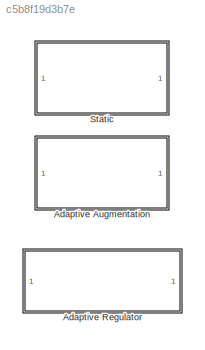
MODEL slx_c5b8f19d3b7e
KIND model
CONFIG AbsTol = auto
CONFIG EnableMultiTasking = off
CONFIG FixedStep = auto
CONFIG MaxStep = auto
CONFIG MinStep = auto
CONFIG RelTol = 1e-3
CONFIG SampleTimeConstraint = Unconstrained
CONFIG SolverName = VariableStepAuto
CONFIG StartTime = 0.0
CONFIG StopTime = 10.0
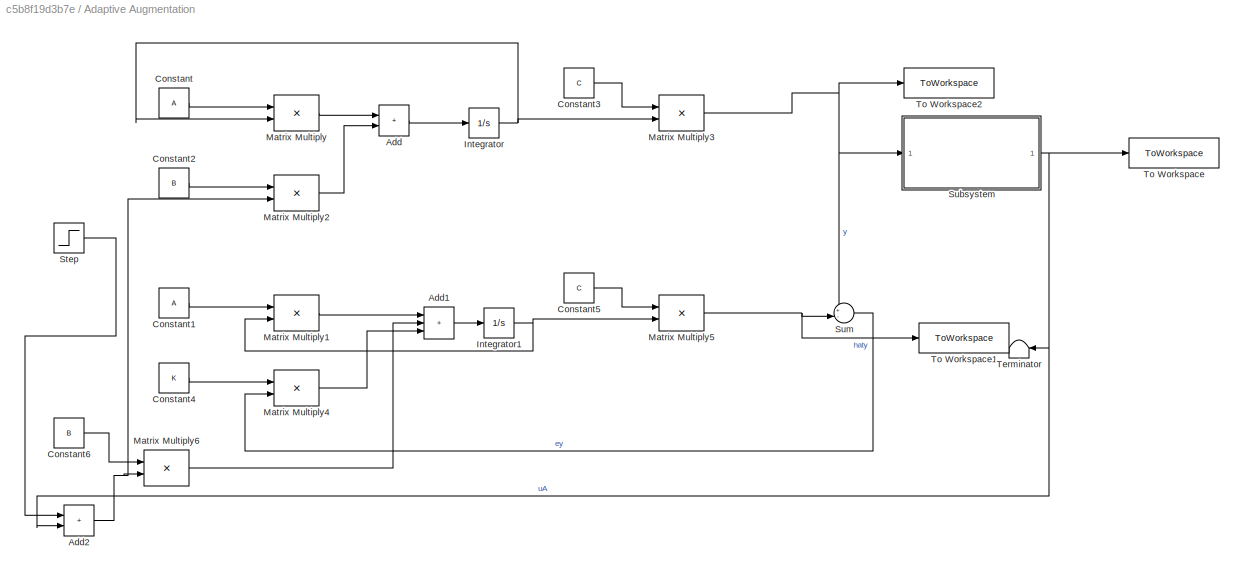
BLOCK [SubSystem] Adaptive Augmentation
  Ports = []
  RequestExecContextInheritance = off
BLOCK [Sum] Adaptive Augmentation/Add
  IconShape = rectangular
  Ports = [2, 1]
BLOCK [Sum] Adaptive Augmentation/Add1
  IconShape = rectangular
  Inputs = +++
  Ports = [3, 1]
BLOCK [Sum] Adaptive Augmentation/Add2
  IconShape = rectangular
  Ports = [2, 1]
BLOCK [Constant] Adaptive Augmentation/Constant
  Value = A
  VectorParams1D = off
BLOCK [Constant] Adaptive Augmentation/Constant1
  Value = A
  VectorParams1D = off
BLOCK [Constant] Adaptive Augmentation/Constant2
  Value = B
  VectorParams1D = off
BLOCK [Constant] Adaptive Augmentation/Constant3
  Value = C
  VectorParams1D = off
BLOCK [Constant] Adaptive Augmentation/Constant4
  Value = K
  VectorParams1D = off
BLOCK [Constant] Adaptive Augmentation/Constant5
  Value = C
  VectorParams1D = off
BLOCK [Constant] Adaptive Augmentation/Constant6
  Value = B
  VectorParams1D = off
BLOCK [Integrator] Adaptive Augmentation/Integrator
  InitialCondition = [1; -1]
  Ports = [1, 1]
BLOCK [Integrator] Adaptive Augmentation/Integrator1
  InitialCondition = [-1; 1]
  Ports = [1, 1]
BLOCK [Product] Adaptive Augmentation/Matrix Multiply
  Multiplication = Matrix(*)
  Ports = [2, 1]
BLOCK [Product] Adaptive Augmentation/Matrix Multiply1
  Multiplication = Matrix(*)
  Ports = [2, 1]
BLOCK [Product] Adaptive Augmentation/Matrix Multiply2
  Multiplication = Matrix(*)
  Ports = [2, 1]
BLOCK [Product] Adaptive Augmentation/Matrix Multiply3
  Multiplication = Matrix(*)
  Ports = [2, 1]
BLOCK [Product] Adaptive Augmentation/Matrix Multiply4
  Multiplication = Matrix(*)
  Ports = [2, 1]
BLOCK [Product] Adaptive Augmentation/Matrix Multiply5
  Multiplication = Matrix(*)
  Ports = [2, 1]
BLOCK [Product] Adaptive Augmentation/Matrix Multiply6
  Multiplication = Matrix(*)
  Ports = [2, 1]
BLOCK [Step] Adaptive Augmentation/Step
  SampleTime = 0
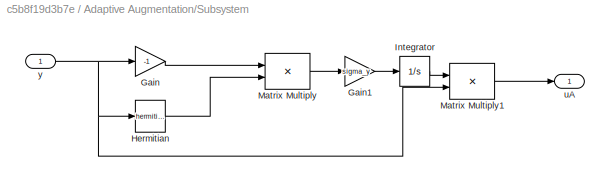
BLOCK [SubSystem] Adaptive Augmentation/Subsystem
  Ports = [1, 1]
  RequestExecContextInheritance = off
BLOCK [Gain] Adaptive Augmentation/Subsystem/Gain
  Gain = -1
BLOCK [Gain] Adaptive Augmentation/Subsystem/Gain1
  Gain = sigma_y
BLOCK [Math] Adaptive Augmentation/Subsystem/Hermitian
  Operator = hermitian
  Ports = [1, 1]
BLOCK [Integrator] Adaptive Augmentation/Subsystem/Integrator
  Ports = [1, 1]
BLOCK [Product] Adaptive Augmentation/Subsystem/Matrix Multiply
  Multiplication = Matrix(*)
  Ports = [2, 1]
BLOCK [Product] Adaptive Augmentation/Subsystem/Matrix Multiply1
  Multiplication = Matrix(*)
  Ports = [2, 1]
BLOCK [Outport] Adaptive Augmentation/Subsystem/uA
BLOCK [Inport] Adaptive Augmentation/Subsystem/y
BLOCK [Sum] Adaptive Augmentation/Sum
  Inputs = +-|
  Ports = [2, 1]
BLOCK [Terminator] Adaptive Augmentation/Terminator
  NameLocation = top
BLOCK [ToWorkspace] Adaptive Augmentation/To Workspace
  FixptAsFi = on
  MaxDataPoints = inf
  Ports = [1]
  SampleTime = -1
  SaveFormat = Timeseries
  VariableName = uA
BLOCK [ToWorkspace] Adaptive Augmentation/To Workspace1
  FixptAsFi = on
  MaxDataPoints = inf
  Ports = [1]
  SampleTime = -1
  SaveFormat = Timeseries
  VariableName = yhat
BLOCK [ToWorkspace] Adaptive Augmentation/To Workspace2
  FixptAsFi = on
  MaxDataPoints = inf
  Ports = [1]
  SampleTime = -1
  SaveFormat = Timeseries
  VariableName = y
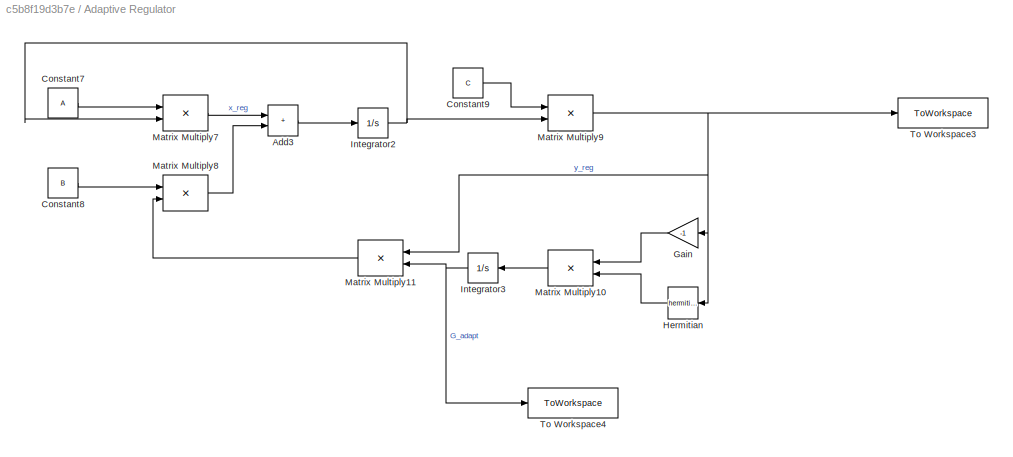
BLOCK [SubSystem] Adaptive Regulator
  Commented = on
  Ports = []
  RequestExecContextInheritance = off
BLOCK [Sum] Adaptive Regulator/Add3
  IconShape = rectangular
  Ports = [2, 1]
BLOCK [Constant] Adaptive Regulator/Constant7
  Value = A
  VectorParams1D = off
BLOCK [Constant] Adaptive Regulator/Constant8
  Value = B
  VectorParams1D = off
BLOCK [Constant] Adaptive Regulator/Constant9
  Value = C
  VectorParams1D = off
BLOCK [Gain] Adaptive Regulator/Gain
  Gain = -1
  NameLocation = top
BLOCK [Math] Adaptive Regulator/Hermitian
  NameLocation = top
  Operator = hermitian
  Ports = [1, 1]
BLOCK [Integrator] Adaptive Regulator/Integrator2
  InitialCondition = [1; -1]
  Ports = [1, 1]
BLOCK [Integrator] Adaptive Regulator/Integrator3
  NameLocation = top
  Ports = [1, 1]
BLOCK [Product] Adaptive Regulator/Matrix Multiply10
  Multiplication = Matrix(*)
  NameLocation = top
  Ports = [2, 1]
BLOCK [Product] Adaptive Regulator/Matrix Multiply11
  Multiplication = Matrix(*)
  NameLocation = top
  Ports = [2, 1]
BLOCK [Product] Adaptive Regulator/Matrix Multiply7
  Multiplication = Matrix(*)
  Ports = [2, 1]
BLOCK [Product] Adaptive Regulator/Matrix Multiply8
  Multiplication = Matrix(*)
  Ports = [2, 1]
BLOCK [Product] Adaptive Regulator/Matrix Multiply9
  Multiplication = Matrix(*)
  Ports = [2, 1]
BLOCK [ToWorkspace] Adaptive Regulator/To Workspace3
  FixptAsFi = on
  MaxDataPoints = inf
  Ports = [1]
  SampleTime = -1
  SaveFormat = Timeseries
  VariableName = y
BLOCK [ToWorkspace] Adaptive Regulator/To Workspace4
  FixptAsFi = on
  MaxDataPoints = inf
  Ports = [1]
  SampleTime = -1
  SaveFormat = Timeseries
  VariableName = G_adapt
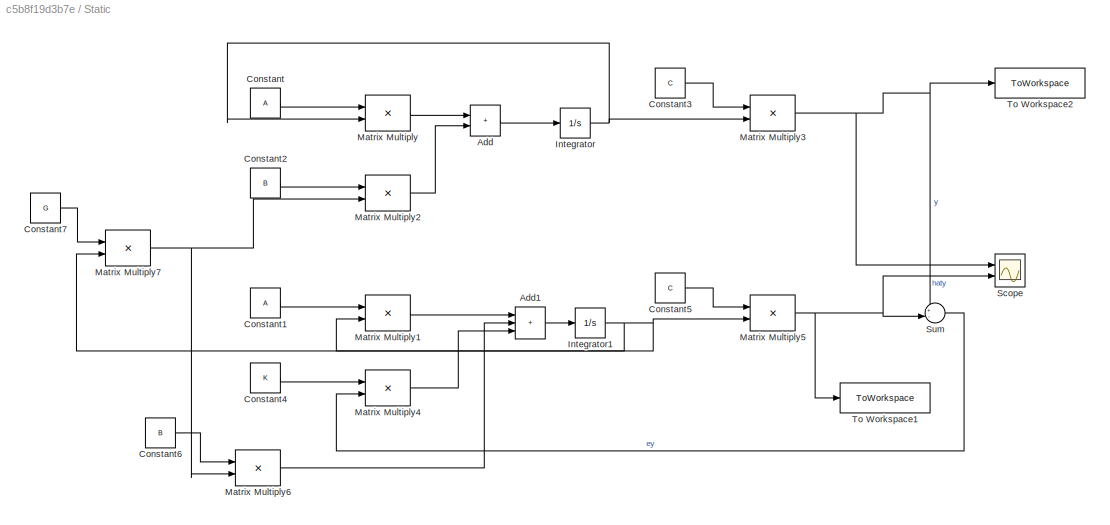
BLOCK [SubSystem] Static
  Commented = on
  Ports = []
  RequestExecContextInheritance = off
BLOCK [Sum] Static/Add
  IconShape = rectangular
  Ports = [2, 1]
BLOCK [Sum] Static/Add1
  IconShape = rectangular
  Inputs = +++
  Ports = [3, 1]
BLOCK [Constant] Static/Constant
  Value = A
  VectorParams1D = off
BLOCK [Constant] Static/Constant1
  Value = A
  VectorParams1D = off
BLOCK [Constant] Static/Constant2
  Value = B
  VectorParams1D = off
BLOCK [Constant] Static/Constant3
  Value = C
  VectorParams1D = off
BLOCK [Constant] Static/Constant4
  Value = K
  VectorParams1D = off
BLOCK [Constant] Static/Constant5
  Value = C
  VectorParams1D = off
BLOCK [Constant] Static/Constant6
  Value = B
  VectorParams1D = off
BLOCK [Constant] Static/Constant7
  Value = G
  VectorParams1D = off
BLOCK [Integrator] Static/Integrator
  InitialCondition = [1; -1]
  Ports = [1, 1]
BLOCK [Integrator] Static/Integrator1
  InitialCondition = [-1; 1]
  Ports = [1, 1]
BLOCK [Product] Static/Matrix Multiply
  Multiplication = Matrix(*)
  Ports = [2, 1]
BLOCK [Product] Static/Matrix Multiply1
  Multiplication = Matrix(*)
  Ports = [2, 1]
BLOCK [Product] Static/Matrix Multiply2
  Multiplication = Matrix(*)
  Ports = [2, 1]
BLOCK [Product] Static/Matrix Multiply3
  Multiplication = Matrix(*)
  Ports = [2, 1]
BLOCK [Product] Static/Matrix Multiply4
  Multiplication = Matrix(*)
  Ports = [2, 1]
BLOCK [Product] Static/Matrix Multiply5
  Multiplication = Matrix(*)
  Ports = [2, 1]
BLOCK [Product] Static/Matrix Multiply6
  Multiplication = Matrix(*)
  Ports = [2, 1]
BLOCK [Product] Static/Matrix Multiply7
  Multiplication = Matrix(*)
  Ports = [2, 1]
BLOCK [Scope] Static/Scope
  Floating = off
  NumInputPorts = 2
  Ports = [2]
  ScopeSpecificationString = Simulink.scopes.TimeScopeBlockCfg('CurrentConfiguration', extmgr.ConfigurationSet(extmgr.Configuration('Core','General UI',true),extmgr.Configuration('Core','Source UI',true),extmgr.Configuration('Sources','WiredSimulink',true),extmgr.Configuration('Visuals','Time Domain',true,'SerializedDisplays',{struct('MinYLimReal','-157923.94761','MaxYLimReal','67694.52103','YLabelReal','','MinYLimMag','    0...<+1389ch>
BLOCK [Sum] Static/Sum
  Inputs = +-|
  Ports = [2, 1]
BLOCK [ToWorkspace] Static/To Workspace1
  FixptAsFi = on
  MaxDataPoints = inf
  Ports = [1]
  SampleTime = -1
  SaveFormat = Timeseries
  VariableName = haty_static
BLOCK [ToWorkspace] Static/To Workspace2
  FixptAsFi = on
  MaxDataPoints = inf
  Ports = [1]
  SampleTime = -1
  SaveFormat = Timeseries
  VariableName = y_static
LINE Adaptive Augmentation/Add1:1 -> Adaptive Augmentation/Integrator1:1
NET Adaptive Augmentation/Add2:1 -> Adaptive Augmentation/Matrix Multiply2:2, Adaptive Augmentation/Matrix Multiply6:2
LINE Adaptive Augmentation/Add:1 -> Adaptive Augmentation/Integrator:1
LINE Adaptive Augmentation/Constant1:1 -> Adaptive Augmentation/Matrix Multiply1:1
LINE Adaptive Augmentation/Constant2:1 -> Adaptive Augmentation/Matrix Multiply2:1
LINE Adaptive Augmentation/Constant3:1 -> Adaptive Augmentation/Matrix Multiply3:1
LINE Adaptive Augmentation/Constant4:1 -> Adaptive Augmentation/Matrix Multiply4:1
LINE Adaptive Augmentation/Constant5:1 -> Adaptive Augmentation/Matrix Multiply5:1
LINE Adaptive Augmentation/Constant6:1 -> Adaptive Augmentation/Matrix Multiply6:1
LINE Adaptive Augmentation/Constant:1 -> Adaptive Augmentation/Matrix Multiply:1
NET Adaptive Augmentation/Integrator1:1 -> Adaptive Augmentation/Matrix Multiply1:2, Adaptive Augmentation/Matrix Multiply5:2
NET Adaptive Augmentation/Integrator:1 -> Adaptive Augmentation/Matrix Multiply3:2, Adaptive Augmentation/Matrix Multiply:2
LINE Adaptive Augmentation/Matrix Multiply1:1 -> Adaptive Augmentation/Add1:1
LINE Adaptive Augmentation/Matrix Multiply2:1 -> Adaptive Augmentation/Add:2
NET Adaptive Augmentation/Matrix Multiply3:1 -> Adaptive Augmentation/Subsystem:1, Adaptive Augmentation/Sum:1, Adaptive Augmentation/To Workspace2:1
LINE Adaptive Augmentation/Matrix Multiply4:1 -> Adaptive Augmentation/Add1:3
NET Adaptive Augmentation/Matrix Multiply5:1 -> Adaptive Augmentation/Sum:2, Adaptive Augmentation/To Workspace1:1
LINE Adaptive Augmentation/Matrix Multiply6:1 -> Adaptive Augmentation/Add1:2
LINE Adaptive Augmentation/Matrix Multiply:1 -> Adaptive Augmentation/Add:1
LINE Adaptive Augmentation/Step:1 -> Adaptive Augmentation/Add2:1
LINE Adaptive Augmentation/Subsystem/Gain1:1 -> Adaptive Augmentation/Subsystem/Integrator:1
LINE Adaptive Augmentation/Subsystem/Gain:1 -> Adaptive Augmentation/Subsystem/Matrix Multiply:1
LINE Adaptive Augmentation/Subsystem/Hermitian:1 -> Adaptive Augmentation/Subsystem/Matrix Multiply:2
LINE Adaptive Augmentation/Subsystem/Integrator:1 -> Adaptive Augmentation/Subsystem/Matrix Multiply1:1
LINE Adaptive Augmentation/Subsystem/Matrix Multiply1:1 -> Adaptive Augmentation/Subsystem/uA:1
LINE Adaptive Augmentation/Subsystem/Matrix Multiply:1 -> Adaptive Augmentation/Subsystem/Gain1:1
NET Adaptive Augmentation/Subsystem/y:1 -> Adaptive Augmentation/Subsystem/Gain:1, Adaptive Augmentation/Subsystem/Hermitian:1, Adaptive Augmentation/Subsystem/Matrix Multiply1:2
NET Adaptive Augmentation/Subsystem:1 -> Adaptive Augmentation/Add2:2, Adaptive Augmentation/Terminator:1, Adaptive Augmentation/To Workspace:1
LINE Adaptive Augmentation/Sum:1 -> Adaptive Augmentation/Matrix Multiply4:2
LINE Adaptive Regulator/Add3:1 -> Adaptive Regulator/Integrator2:1
LINE Adaptive Regulator/Constant7:1 -> Adaptive Regulator/Matrix Multiply7:1
LINE Adaptive Regulator/Constant8:1 -> Adaptive Regulator/Matrix Multiply8:1
LINE Adaptive Regulator/Constant9:1 -> Adaptive Regulator/Matrix Multiply9:1
LINE Adaptive Regulator/Gain:1 -> Adaptive Regulator/Matrix Multiply10:1
LINE Adaptive Regulator/Hermitian:1 -> Adaptive Regulator/Matrix Multiply10:2
NET Adaptive Regulator/Integrator2:1 -> Adaptive Regulator/Matrix Multiply7:2, Adaptive Regulator/Matrix Multiply9:2
NET Adaptive Regulator/Integrator3:1 -> Adaptive Regulator/Matrix Multiply11:2, Adaptive Regulator/To Workspace4:1
LINE Adaptive Regulator/Matrix Multiply10:1 -> Adaptive Regulator/Integrator3:1
LINE Adaptive Regulator/Matrix Multiply11:1 -> Adaptive Regulator/Matrix Multiply8:2
LINE Adaptive Regulator/Matrix Multiply7:1 -> Adaptive Regulator/Add3:1
LINE Adaptive Regulator/Matrix Multiply8:1 -> Adaptive Regulator/Add3:2
NET Adaptive Regulator/Matrix Multiply9:1 -> Adaptive Regulator/Gain:1, Adaptive Regulator/Hermitian:1, Adaptive Regulator/Matrix Multiply11:1, Adaptive Regulator/To Workspace3:1
LINE Static/Add1:1 -> Static/Integrator1:1
LINE Static/Add:1 -> Static/Integrator:1
LINE Static/Constant1:1 -> Static/Matrix Multiply1:1
LINE Static/Constant2:1 -> Static/Matrix Multiply2:1
LINE Static/Constant3:1 -> Static/Matrix Multiply3:1
LINE Static/Constant4:1 -> Static/Matrix Multiply4:1
LINE Static/Constant5:1 -> Static/Matrix Multiply5:1
LINE Static/Constant6:1 -> Static/Matrix Multiply6:1
LINE Static/Constant7:1 -> Static/Matrix Multiply7:1
LINE Static/Constant:1 -> Static/Matrix Multiply:1
NET Static/Integrator1:1 -> Static/Matrix Multiply1:2, Static/Matrix Multiply5:2, Static/Matrix Multiply7:2
NET Static/Integrator:1 -> Static/Matrix Multiply3:2, Static/Matrix Multiply:2
LINE Static/Matrix Multiply1:1 -> Static/Add1:1
LINE Static/Matrix Multiply2:1 -> Static/Add:2
NET Static/Matrix Multiply3:1 -> Static/Scope:1, Static/Sum:1, Static/To Workspace2:1
LINE Static/Matrix Multiply4:1 -> Static/Add1:3
NET Static/Matrix Multiply5:1 -> Static/Scope:2, Static/Sum:2, Static/To Workspace1:1
LINE Static/Matrix Multiply6:1 -> Static/Add1:2
NET Static/Matrix Multiply7:1 -> Static/Matrix Multiply2:2, Static/Matrix Multiply6:2
LINE Static/Matrix Multiply:1 -> Static/Add:1
LINE Static/Sum:1 -> Static/Matrix Multiply4:2
note: NET lines group one-source signal fan-out (src -> all destinations, sorted); 1:1 wires keep LINE
